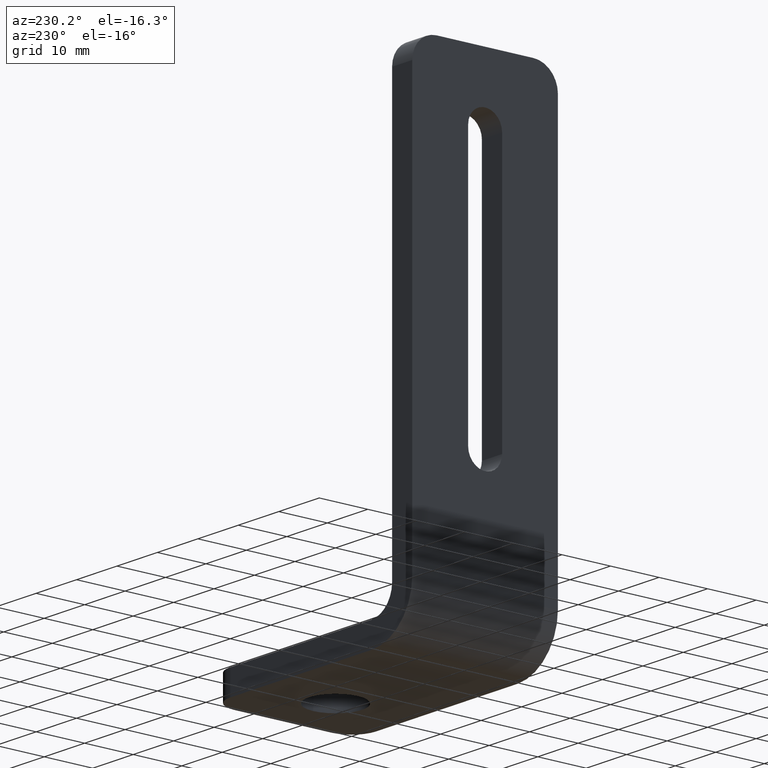
[diagram: clean part render]
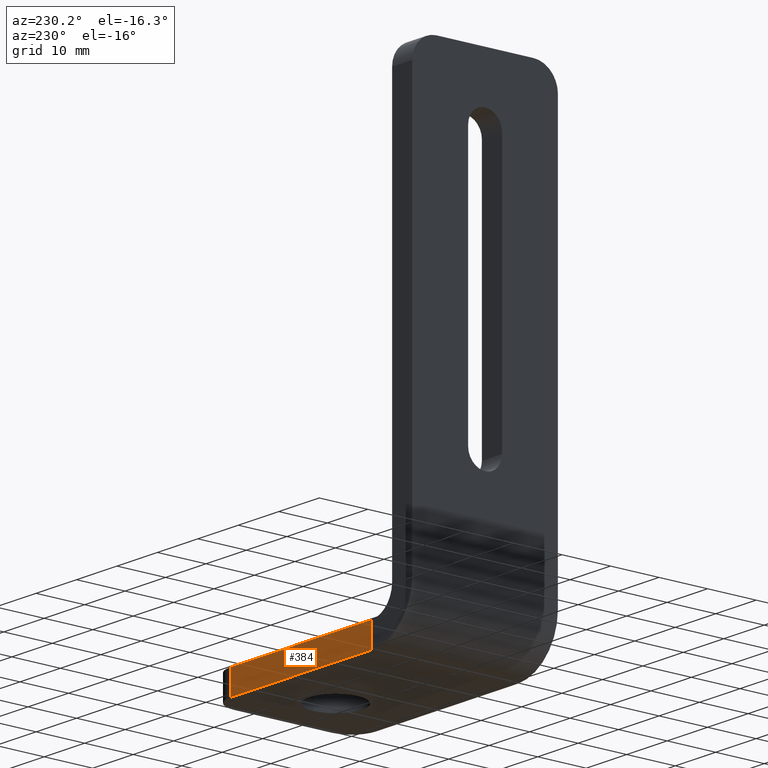
[diagram: same view with one face highlighted and labeled with its STEP entity id]
A machine part, auxiliary view. The second image highlights one B-rep face of the part: STEP entity #384.
In plain terms, the highlighted planar face has unit normal (0, 1, 0).
Its self-contained STEP definition (entity closure, byte-faithful):
#22=PLANE('',#414);
#38=FACE_OUTER_BOUND('',#62,.T.);
#62=EDGE_LOOP('',(#282,#283,#284,#285));
#92=LINE('',#588,#128);
#93=LINE('',#595,#129);
#94=LINE('',#598,#130);
#95=LINE('',#599,#131);
#128=VECTOR('',#465,35.);
#129=VECTOR('',#474,5.);
#130=VECTOR('',#477,5.);
#131=VECTOR('',#478,35.);
#182=VERTEX_POINT('',#585);
#183=VERTEX_POINT('',#587);
#185=VERTEX_POINT('',#593);
#186=VERTEX_POINT('',#597);
#218=EDGE_CURVE('',#182,#183,#92,.T.);
#222=EDGE_CURVE('',#183,#185,#93,.T.);
#223=EDGE_CURVE('',#182,#186,#94,.T.);
#224=EDGE_CURVE('',#186,#185,#95,.T.);
#282=ORIENTED_EDGE('',*,*,#222,.F.);
#283=ORIENTED_EDGE('',*,*,#218,.F.);
#284=ORIENTED_EDGE('',*,*,#223,.T.);
#285=ORIENTED_EDGE('',*,*,#224,.T.);
#384=ADVANCED_FACE('',(#38),#22,.T.);
#414=AXIS2_PLACEMENT_3D('',#596,#475,#476);
#465=DIRECTION('',(1.,0.,0.));
#474=DIRECTION('',(0.,0.,1.));
#475=DIRECTION('center_axis',(0.,1.,0.));
#476=DIRECTION('ref_axis',(0.,0.,1.));
#477=DIRECTION('',(0.,0.,1.));
#478=DIRECTION('',(1.,0.,0.));
#585=CARTESIAN_POINT('',(-15.,15.,0.));
#587=CARTESIAN_POINT('',(20.,15.,0.));
#588=CARTESIAN_POINT('',(-25.,15.,0.));
#593=CARTESIAN_POINT('',(20.,15.,5.));
#595=CARTESIAN_POINT('',(20.,15.,0.));
#596=CARTESIAN_POINT('Origin',(-25.,15.,0.));
#597=CARTESIAN_POINT('',(-15.,15.,5.));
#598=CARTESIAN_POINT('',(-15.,15.,2.5));
#599=CARTESIAN_POINT('',(-25.,15.,5.));